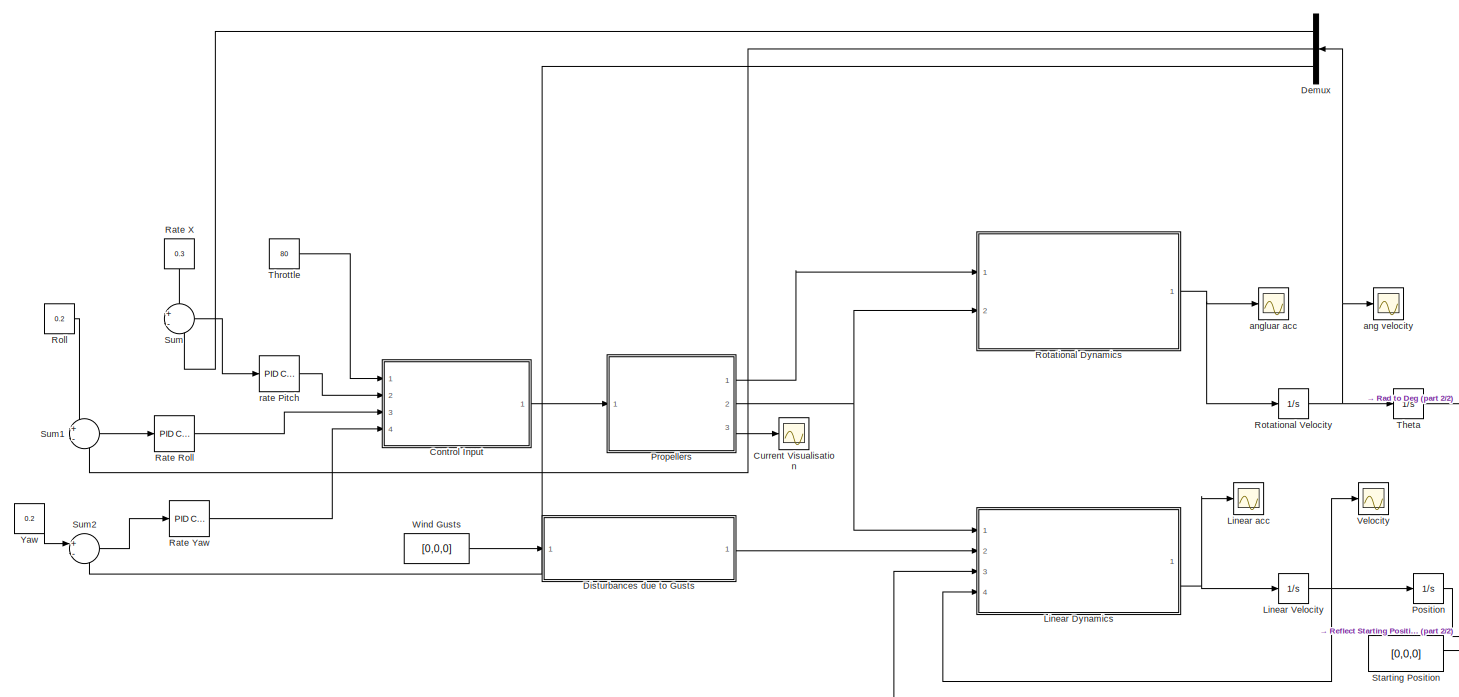
[diagram: root canvas - part 1/2, most of the canvas]
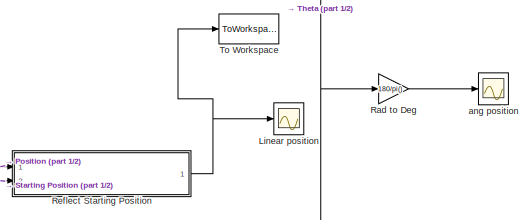
[diagram: root canvas - part 2/2, bottom right region]
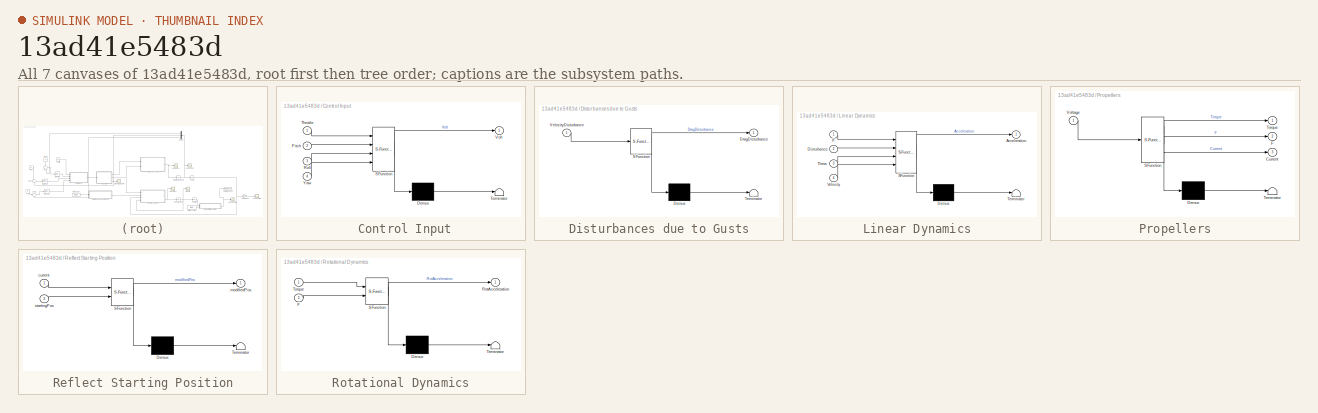
[diagram: thumbnail index - all 7 canvases of the model, root first then tree order]
MODEL slx_13ad41e5483d
KIND model
CONFIG AbsTol = auto
CONFIG EnableMultiTasking = off
CONFIG FixedStep = auto
CONFIG MaxStep = auto
CONFIG MinStep = auto
CONFIG RelTol = 1e-3
CONFIG SampleTimeConstraint = Unconstrained
CONFIG Solver = VariableStepAuto
CONFIG SolverName = VariableStepAuto
CONFIG StartTime = 0.0
CONFIG StopTime = 5
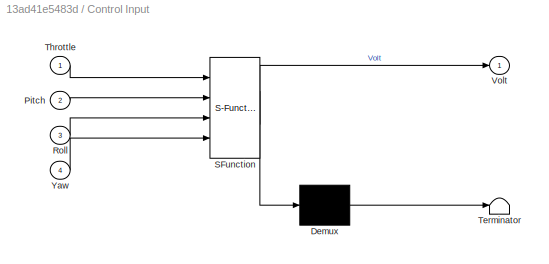
BLOCK [SubSystem]  Control Input
  ErrorFcn = Stateflow.Translate.translate
  PermitHierarchicalResolution = ExplicitOnly
  Ports = [4, 1]
  RequestExecContextInheritance = off
  SFBlockType = MATLAB Function
  TreatAsAtomicUnit = on
BLOCK [Demux]  Control Input/ Demux 
  Outputs = 1
  Ports = [1, 1]
BLOCK [S-Function]  Control Input/ SFunction 
  EnableBusSupport = on
  FunctionName = sf_sfun
  PortCounts = [4 2]
  Ports = [4, 2]
  SFcnIsStateOwnerBlock = off
  SFunctionDeploymentMode = off
  Tag = Stateflow S-Function ModeltheMavic_Complete 5
BLOCK [Terminator]  Control Input/ Terminator 
BLOCK [Inport]  Control Input/Pitch
  IconDisplay = Port number
  Port = 2
BLOCK [Inport]  Control Input/Roll
  IconDisplay = Port number
  Port = 3
BLOCK [Inport]  Control Input/Throttle
  IconDisplay = Port number
BLOCK [Outport]  Control Input/Volt
  IconDisplay = Port number
BLOCK [Inport]  Control Input/Yaw
  IconDisplay = Port number
  Port = 4
BLOCK [Scope] Current Visualisation 
  Floating = off
  NumInputPorts = 1
  Ports = [1]
  ScopeSpecificationString = Simulink.scopes.TimeScopeBlockCfg('CurrentConfiguration', extmgr.ConfigurationSet(extmgr.Configuration('Core','General UI',true),extmgr.Configuration('Core','Source UI',true),extmgr.Configuration('Sources','WiredSimulink',true,'DataLoggingVariableName','ScopeData6'),extmgr.Configuration('Visuals','Time Domain',true,'SerializedDisplays',{struct('MinYLimReal','-2.21161','MaxYLimReal','171.41822','YL...<+1482ch>
BLOCK [Demux] Demux
  DisplayOption = bar
  Outputs = 3
  Ports = [1, 3]
BLOCK [SubSystem] Disturbances due to Gusts
  ErrorFcn = Stateflow.Translate.translate
  PermitHierarchicalResolution = ExplicitOnly
  Ports = [1, 1]
  RequestExecContextInheritance = off
  SFBlockType = MATLAB Function
  TreatAsAtomicUnit = on
BLOCK [Demux] Disturbances due to Gusts/ Demux 
  Outputs = 1
  Ports = [1, 1]
BLOCK [S-Function] Disturbances due to Gusts/ SFunction 
  EnableBusSupport = on
  FunctionName = sf_sfun
  PortCounts = [1 2]
  Ports = [1, 2]
  SFcnIsStateOwnerBlock = off
  SFunctionDeploymentMode = off
  Tag = Stateflow S-Function ModeltheMavic_Complete 4
BLOCK [Terminator] Disturbances due to Gusts/ Terminator 
BLOCK [Outport] Disturbances due to Gusts/DragDisturbance
  IconDisplay = Port number
BLOCK [Inport] Disturbances due to Gusts/VelocityDisturbance
  IconDisplay = Port number
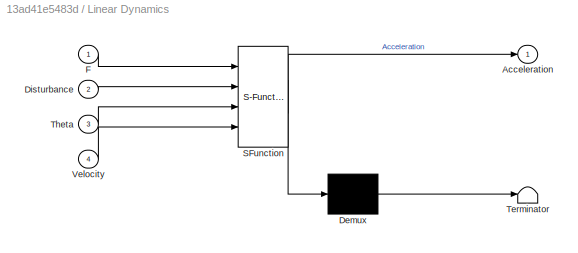
BLOCK [SubSystem] Linear Dynamics
  ErrorFcn = Stateflow.Translate.translate
  PermitHierarchicalResolution = ExplicitOnly
  Ports = [4, 1]
  RequestExecContextInheritance = off
  SFBlockType = MATLAB Function
  TreatAsAtomicUnit = on
BLOCK [Demux] Linear Dynamics/ Demux 
  Outputs = 1
  Ports = [1, 1]
BLOCK [S-Function] Linear Dynamics/ SFunction 
  EnableBusSupport = on
  FunctionName = sf_sfun
  PortCounts = [4 2]
  Ports = [4, 2]
  SFcnIsStateOwnerBlock = off
  SFunctionDeploymentMode = off
  Tag = Stateflow S-Function ModeltheMavic_Complete 3
BLOCK [Terminator] Linear Dynamics/ Terminator 
BLOCK [Outport] Linear Dynamics/Acceleration
  IconDisplay = Port number
BLOCK [Inport] Linear Dynamics/Disturbance
  IconDisplay = Port number
  Port = 2
BLOCK [Inport] Linear Dynamics/F
  IconDisplay = Port number
BLOCK [Inport] Linear Dynamics/Theta
  IconDisplay = Port number
  Port = 3
BLOCK [Inport] Linear Dynamics/Velocity
  IconDisplay = Port number
  Port = 4
BLOCK [Integrator] Linear Velocity
  Ports = [1, 1]
BLOCK [Scope] Linear acc
  Floating = off
  NumInputPorts = 1
  Ports = [1]
  ScopeSpecificationString = Simulink.scopes.TimeScopeBlockCfg('CurrentConfiguration', extmgr.ConfigurationSet(extmgr.Configuration('Core','General UI',true),extmgr.Configuration('Core','Source UI',true),extmgr.Configuration('Sources','WiredSimulink',true,'DataLoggingVariableName','ScopeData5'),extmgr.Configuration('Visuals','Time Domain',true),extmgr.Configuration('Tools','Plot Navigation',true),extmgr.Configuration('Tools',...<+40ch>
BLOCK [Scope] Linear position
  Floating = off
  NumInputPorts = 1
  Ports = [1]
  ScopeSpecificationString = Simulink.scopes.TimeScopeBlockCfg('CurrentConfiguration', extmgr.ConfigurationSet(extmgr.Configuration('Core','General UI',true),extmgr.Configuration('Core','Source UI',true),extmgr.Configuration('Sources','WiredSimulink',true,'DataLoggingVariableName','ScopeData3'),extmgr.Configuration('Visuals','Time Domain',true,'SerializedDisplays',{struct('MinYLimReal','-36.67861','MaxYLimReal','139.58534','Y...<+1503ch>
BLOCK [Integrator] Position
  Ports = [1, 1]
BLOCK [SubSystem] Propellers
  ErrorFcn = Stateflow.Translate.translate
  PermitHierarchicalResolution = ExplicitOnly
  Ports = [1, 3]
  RequestExecContextInheritance = off
  SFBlockType = MATLAB Function
  TreatAsAtomicUnit = on
BLOCK [Demux] Propellers/ Demux 
  Outputs = 1
  Ports = [1, 1]
BLOCK [S-Function] Propellers/ SFunction 
  EnableBusSupport = on
  FunctionName = sf_sfun
  PortCounts = [1 4]
  Ports = [1, 4]
  SFcnIsStateOwnerBlock = off
  SFunctionDeploymentMode = off
  Tag = Stateflow S-Function ModeltheMavic_Complete 2
BLOCK [Terminator] Propellers/ Terminator 
BLOCK [Outport] Propellers/Current
  IconDisplay = Port number
  Port = 3
BLOCK [Outport] Propellers/F
  IconDisplay = Port number
  Port = 2
BLOCK [Outport] Propellers/Torque
  IconDisplay = Port number
BLOCK [Inport] Propellers/Voltage
  IconDisplay = Port number
BLOCK [Gain] Rad to Deg
  Gain = 180/pi()
  OutDataTypeStr = Inherit: Inherit via internal rule
  ParamDataTypeStr = Inherit: Inherit via internal rule
  SaturateOnIntegerOverflow = off
BLOCK [Reference] Rate Roll  REF=simulink/Continuous/PID Controller
  Ports = [1, 1]
  SourceBlock = simulink/Continuous/PID Controller
  SourceProductBaseCode = SL
  SourceProductName = Simulink
  SourceType = PID 1dof
BLOCK [Constant] Rate X
  Value = 0.3
BLOCK [Reference] Rate Yaw  REF=simulink/Continuous/PID Controller
  Ports = [1, 1]
  SourceBlock = simulink/Continuous/PID Controller
  SourceProductBaseCode = SL
  SourceProductName = Simulink
  SourceType = PID 1dof
BLOCK [SubSystem] Reflect Starting Position
  ErrorFcn = Stateflow.Translate.translate
  PermitHierarchicalResolution = ExplicitOnly
  Ports = [2, 1]
  RequestExecContextInheritance = off
  SFBlockType = MATLAB Function
  TreatAsAtomicUnit = on
BLOCK [Demux] Reflect Starting Position/ Demux 
  Outputs = 1
  Ports = [1, 1]
BLOCK [S-Function] Reflect Starting Position/ SFunction 
  EnableBusSupport = on
  FunctionName = sf_sfun
  PortCounts = [2 2]
  Ports = [2, 2]
  SFcnIsStateOwnerBlock = off
  SFunctionDeploymentMode = off
  Tag = Stateflow S-Function ModeltheMavic_Complete 6
BLOCK [Terminator] Reflect Starting Position/ Terminator 
BLOCK [Inport] Reflect Starting Position/current
  IconDisplay = Port number
BLOCK [Outport] Reflect Starting Position/modifiedPos
  IconDisplay = Port number
BLOCK [Inport] Reflect Starting Position/startingPos
  IconDisplay = Port number
  Port = 2
BLOCK [Constant] Roll
  Value = 0.2
BLOCK [SubSystem] Rotational Dynamics
  ErrorFcn = Stateflow.Translate.translate
  PermitHierarchicalResolution = ExplicitOnly
  Ports = [2, 1]
  RequestExecContextInheritance = off
  SFBlockType = MATLAB Function
  TreatAsAtomicUnit = on
BLOCK [Demux] Rotational Dynamics/ Demux 
  Outputs = 1
  Ports = [1, 1]
BLOCK [S-Function] Rotational Dynamics/ SFunction 
  EnableBusSupport = on
  FunctionName = sf_sfun
  PortCounts = [2 2]
  Ports = [2, 2]
  SFcnIsStateOwnerBlock = off
  SFunctionDeploymentMode = off
  Tag = Stateflow S-Function ModeltheMavic_Complete 1
BLOCK [Terminator] Rotational Dynamics/ Terminator 
BLOCK [Inport] Rotational Dynamics/F
  IconDisplay = Port number
  Port = 2
BLOCK [Outport] Rotational Dynamics/RotAcceleration
  IconDisplay = Port number
BLOCK [Inport] Rotational Dynamics/Torque
  IconDisplay = Port number
BLOCK [Integrator] Rotational Velocity
  Ports = [1, 1]
BLOCK [Constant] Starting Position
  Value = [0,0,0]
  VectorParams1D = off
BLOCK [Sum] Sum
  IconShape = round
  InputSameDT = off
  Inputs = +-
  OutDataTypeStr = Inherit: Inherit via internal rule
  Ports = [2, 1]
  SaturateOnIntegerOverflow = off
BLOCK [Sum] Sum1
  IconShape = round
  InputSameDT = off
  Inputs = +-
  OutDataTypeStr = Inherit: Inherit via internal rule
  Ports = [2, 1]
  SaturateOnIntegerOverflow = off
BLOCK [Sum] Sum2
  IconShape = round
  InputSameDT = off
  Inputs = +-
  OutDataTypeStr = Inherit: Inherit via internal rule
  Ports = [2, 1]
  SaturateOnIntegerOverflow = off
BLOCK [Integrator] Theta
  Ports = [1, 1]
BLOCK [Constant] Throttle
  Value = 80
BLOCK [ToWorkspace] To Workspace
  FixptAsFi = on
  MaxDataPoints = inf
  Ports = [1]
  SampleTime = -1
  Save2DSignal = 2-D array (concatenate along first dimension)
  VariableName = PositionVector
BLOCK [Scope] Velocity 
  Floating = off
  NumInputPorts = 1
  Ports = [1]
  ScopeSpecificationString = Simulink.scopes.TimeScopeBlockCfg('CurrentConfiguration', extmgr.ConfigurationSet(extmgr.Configuration('Core','General UI',true),extmgr.Configuration('Core','Source UI',true),extmgr.Configuration('Sources','WiredSimulink',true),extmgr.Configuration('Visuals','Time Domain',true,'SerializedDisplays',{struct('MinYLimReal','-1.53476','MaxYLimReal','3.19237','YLabelReal','','MinYLimMag','0.00000','MaxY...<+1396ch>
BLOCK [Constant] Wind Gusts
  Value = [0,0,0]
BLOCK [Constant] Yaw
  Value = 0.2
BLOCK [Scope] ang position
  Floating = off
  NumInputPorts = 1
  Ports = [1]
  ScopeSpecificationString = Simulink.scopes.TimeScopeBlockCfg('CurrentConfiguration', extmgr.ConfigurationSet(extmgr.Configuration('Core','General UI',true),extmgr.Configuration('Core','Source UI',true),extmgr.Configuration('Sources','WiredSimulink',true,'DataLoggingVariableName','ScopeData2'),extmgr.Configuration('Visuals','Time Domain',true,'SerializedDisplays',{struct('MinYLimReal','-35810.92323','MaxYLimReal','322294.126...<+1433ch>
BLOCK [Scope] ang velocity
  Floating = off
  NumInputPorts = 1
  Ports = [1]
  ScopeSpecificationString = Simulink.scopes.TimeScopeBlockCfg('CurrentConfiguration', extmgr.ConfigurationSet(extmgr.Configuration('Core','General UI',true),extmgr.Configuration('Core','Source UI',true),extmgr.Configuration('Sources','WiredSimulink',true,'DataLoggingVariableName','ScopeData1'),extmgr.Configuration('Visuals','Time Domain',true,'SerializedDisplays',{struct('MinYLimReal','-7.10578','MaxYLimReal','56.41091','YLa...<+1484ch>
BLOCK [Scope] angluar acc
  Floating = off
  NumInputPorts = 1
  Ports = [1]
  ScopeSpecificationString = Simulink.scopes.TimeScopeBlockCfg('CurrentConfiguration', extmgr.ConfigurationSet(extmgr.Configuration('Core','General UI',true),extmgr.Configuration('Core','Source UI',true),extmgr.Configuration('Sources','WiredSimulink',true,'DataLoggingVariableName','ScopeData4'),extmgr.Configuration('Visuals','Time Domain',true,'SerializedDisplays',{struct('MinYLimReal','-65.2611','MaxYLimReal','553.34113','YL...<+1436ch>
BLOCK [Reference] rate Pitch  REF=simulink/Continuous/PID Controller
  Ports = [1, 1]
  SourceBlock = simulink/Continuous/PID Controller
  SourceProductBaseCode = SL
  SourceProductName = Simulink
  SourceType = PID 1dof
LINE  Control Input:1 -> Propellers:1
LINE Demux:1 -> Sum:2
LINE Demux:2 -> Sum1:2
LINE Demux:3 -> Sum2:2
LINE Disturbances due to Gusts:1 -> Linear Dynamics:2
NET Linear Dynamics:1 -> Linear Velocity:1, Linear acc:1
NET Linear Velocity:1 -> Linear Dynamics:4, Position:1, Velocity :1
LINE Position:1 -> Reflect Starting Position:1
LINE Propellers:1 -> Rotational Dynamics:1
NET Propellers:2 -> Linear Dynamics:1, Rotational Dynamics:2
LINE Propellers:3 -> Current Visualisation :1
LINE Rad to Deg:1 -> ang position:1
LINE Rate Roll:1 ->  Control Input:3
LINE Rate X:1 -> Sum:1
LINE Rate Yaw:1 ->  Control Input:4
NET Reflect Starting Position:1 -> Linear position:1, To Workspace:1
LINE Roll:1 -> Sum1:1
NET Rotational Dynamics:1 -> Rotational Velocity:1, angluar acc:1
NET Rotational Velocity:1 -> Demux:1, Theta:1, ang velocity:1
LINE Starting Position:1 -> Reflect Starting Position:2
LINE Sum1:1 -> Rate Roll:1
LINE Sum2:1 -> Rate Yaw:1
LINE Sum:1 -> rate Pitch:1
NET Theta:1 -> Linear Dynamics:3, Rad to Deg:1
LINE Throttle:1 ->  Control Input:1
LINE Wind Gusts:1 -> Disturbances due to Gusts:1
LINE Yaw:1 -> Sum2:1
LINE rate Pitch:1 ->  Control Input:2
note: NET lines group one-source signal fan-out (src -> all destinations, sorted); 1:1 wires keep LINE
CHART Rotational Dynamics states=1 transitions=1
  STATE_LABEL 'eML_blk_kernel()'
  STATE_LABEL 'SCRIPT:\nfunction RotAcceleration = fcn(Torque, F)\nMoment = [0 0 0];\nRotAcceleration = [0 0 0]; \nInertia = [0.003, 0.003, 0.007]; %moment of inertia\n\nMoment(1) =  (F(3)+F(4)) * 0.237/2 - (F(1)+F(2))*0.237/2;\nMoment(2) =  (F(3)+F(2)) * 0.237/2 - (F(1)+F(4))*0.237/2;\nMoment(3) =  Torque(4) - Torque(1) + Torque(2) - Torque(3); %yaw\n\nfor i=1:3\n    RotAcceleration(i) = Moment(i) / Inertia(i);\nend\n'
CHART Propellers states=1 transitions=1
  STATE_LABEL 'eML_blk_kernel()'
  STATE_LABEL 'SCRIPT:\nfunction [Torque, F, Current] = fcn(Voltage)\n\nRPM = [0 0 0 0];\nTorque = [0 0 0 0];\nCurrent = [0 0 0 0];\nF = [0 0 0 0];\n\nfor i=1:4\n    RPM(i) = -2.6931*Voltage(i)^3 + 1400*Voltage(i);\n    Ct = 2 * (10^-15) * (RPM(i)^3) - 4 * (10^-11) * (RPM(i)^2) + 3 * (10^(-7)) * RPM(i) + 0.1013;\n    F(i) = Ct * 1.225*(RPM(i)/60)^2 * 0.2^4; %0.2 = diameter of propeller\n    Torque(i) = 4 * 10^-14 * RPM(i)^3...<+85ch>'
CHART Linear Dynamics states=1 transitions=1
  STATE_LABEL 'eML_blk_kernel()'
  STATE_LABEL 'SCRIPT:\nfunction Acceleration  = fcn(F,Disturbance,Theta,Velocity)\nm=0.743; %mass\ng=9.81; %gravity\nA=[0.0197 0.0197 0.0512]; %projected area \nair=1.225; %air density\nCd=1; %coefficient of drag\n\nAcceleration=[0 0 0];\nForce = [0 0 0];\nFprop = [0 0 0]; %thrust in x,y,z direction\n% Prop=[0;0;0];\n\nFprop(1)=sin(Theta(2))*cos(Theta(1))*(F(1)+F(2)+F(3)+F(4));\nFprop(2)=sin(Theta(1))*cos(Theta(2))*(F(1)+F(2...<+1227ch>'
CHART Disturbances due to Gusts states=1 transitions=1
  STATE_LABEL 'eML_blk_kernel()'
  STATE_LABEL 'SCRIPT:\nfunction DragDisturbance = fcn(VelocityDisturbance)\nA=[0.0197 0.0197 0.0197*2*1.3];\nDragDisturbance=[0 0 0];\nrho=1.225;\nCd=1;\n\nfor i=1:3\n    if VelocityDisturbance(i)<0\n        DragDisturbance(i)=-0.5*rho*VelocityDisturbance(i)^2*A(i)*Cd;\n    else\n        DragDisturbance(i)=0.5*rho*VelocityDisturbance(i)^2*A(i)*Cd;\n    end\nend\n'
CHART  Control Input states=1 transitions=1
  STATE_LABEL 'eML_blk_kernel()'
  STATE_LABEL 'SCRIPT:\nfunction Volt = fcn(Throttle, Pitch, Roll, Yaw)\n\nCorrect = 0; %correction of final voltage\n%increase, decrease throttle level that symmetry works\n\n%condition of each input \n%Throttle <- increase and decrease pitch roll yaw symetrically\nif (Pitch/2+Roll/2+Yaw/2) > (100-Throttle) % -50 ~ +50\n   \n    Correct = ((Pitch/2 + Roll/2 + Yaw/2) - (100 - Throttle));\n       \nend\n\nif Throttle > 10 && (...<+867ch>'
CHART Reflect Starting Position states=1 transitions=1
  STATE_LABEL 'eML_blk_kernel()'
  STATE_LABEL 'SCRIPT:\nfunction modifiedPos = fcn(current, startingPos)\nmodifiedPos = current + startingPos;\n'
